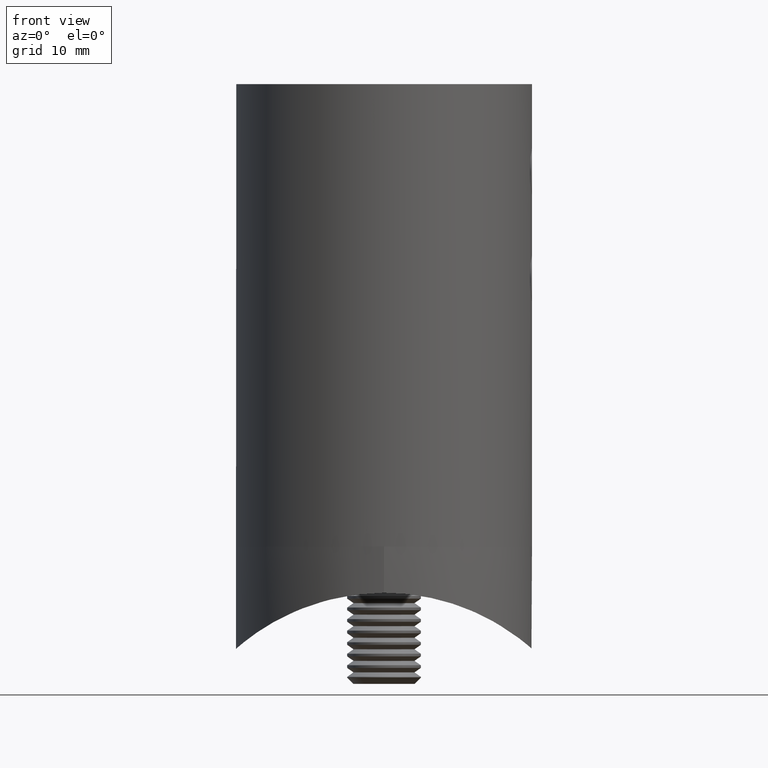
[diagram: clean part render]
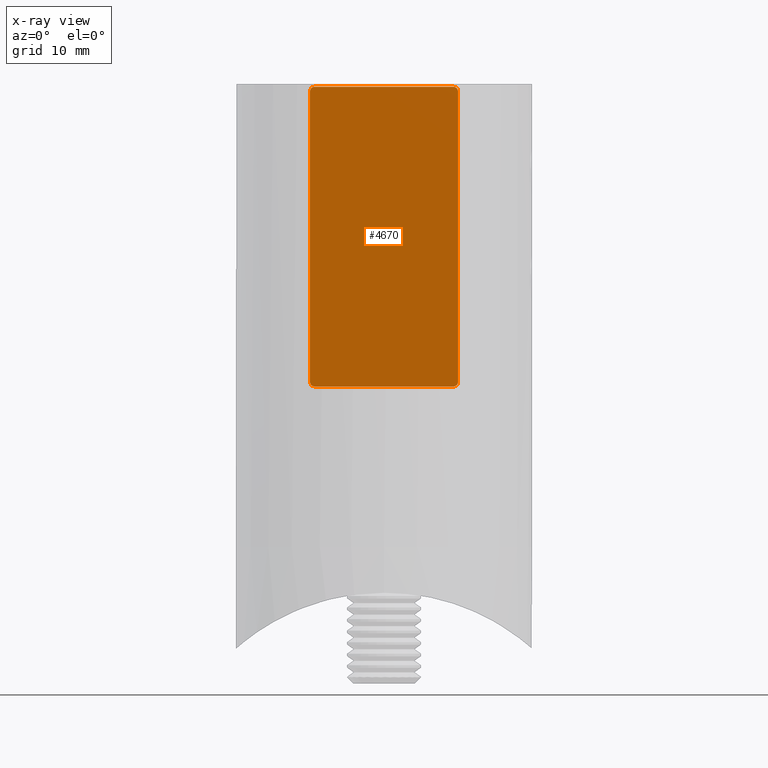
[diagram: x-ray — body ghosted, one internal face saturated and labeled with its STEP entity id]
A machine part, front view, then the same camera in x-ray: the body is ghosted and one INTERNAL B-rep face — a face not visible from any outside direction — is saturated and labeled: STEP entity #4670.
In plain terms, the highlighted planar face has unit normal (0, -1, -0).
Its self-contained STEP definition (entity closure, byte-faithful):
#408 = DIRECTION ( 'NONE',  ( 0.000000000000000000, 1.000000000000000000, 0.000000000000000000 ) ) ;
#740 = EDGE_CURVE ( 'NONE', #5903, #13530, #7506, .T. ) ;
#1109 = ORIENTED_EDGE ( 'NONE', *, *, #12085, .T. ) ;
#1373 = ORIENTED_EDGE ( 'NONE', *, *, #17275, .F. ) ;
#1666 = DIRECTION ( 'NONE',  ( 0.000000000000000000, -0.000000000000000000, -1.000000000000000000 ) ) ;
#2570 = VECTOR ( 'NONE', #8708, 1000.000000000000000 ) ;
#2706 = ORIENTED_EDGE ( 'NONE', *, *, #4376, .F. ) ;
#3267 = DIRECTION ( 'NONE',  ( 0.000000000000000000, 0.000000000000000000, 1.000000000000000000 ) ) ;
#4146 = EDGE_LOOP ( 'NONE', ( #9237, #8198, #6130, #5139, #12783, #2706, #1373, #1109 ) ) ;
#4376 = EDGE_CURVE ( 'NONE', #15030, #19792, #18681, .T. ) ;
#4670 = ADVANCED_FACE ( 'NONE', ( #9313 ), #18847, .T. ) ;
#4737 = DIRECTION ( 'NONE',  ( -0.000000000000000000, -1.000000000000000000, 0.000000000000000000 ) ) ;
#4837 = DIRECTION ( 'NONE',  ( 0.000000000000000000, 1.000000000000000000, 0.000000000000000000 ) ) ;
#5139 = ORIENTED_EDGE ( 'NONE', *, *, #5317, .F. ) ;
#5317 = EDGE_CURVE ( 'NONE', #12200, #12798, #19651, .T. ) ;
#5903 = VERTEX_POINT ( 'NONE', #13689 ) ;
#6130 = ORIENTED_EDGE ( 'NONE', *, *, #17508, .F. ) ;
#6135 = VECTOR ( 'NONE', #18451, 1000.000000000000000 ) ;
#6554 = DIRECTION ( 'NONE',  ( 0.000000000000000000, 0.000000000000000000, 1.000000000000000000 ) ) ;
#7022 = CARTESIAN_POINT ( 'NONE',  ( -16.19999999999999929, 0.000000000000000000, 7.499999999999996447 ) ) ;
#7453 = VECTOR ( 'NONE', #14625, 1000.000000000000000 ) ;
#7506 = CIRCLE ( 'NONE', #13621, 0.5000000000000004441 ) ;
#7647 = CARTESIAN_POINT ( 'NONE',  ( 16.19999999999999929, 0.000000000000000000, 7.499999999999996447 ) ) ;
#7692 = AXIS2_PLACEMENT_3D ( 'NONE', #10942, #9413, #1666 ) ;
#8152 = CARTESIAN_POINT ( 'NONE',  ( 15.69999999999999929, 0.000000000000000000, -7.500000000000000000 ) ) ;
#8198 = ORIENTED_EDGE ( 'NONE', *, *, #19058, .T. ) ;
#8235 = AXIS2_PLACEMENT_3D ( 'NONE', #8152, #408, #16171 ) ;
#8330 = CARTESIAN_POINT ( 'NONE',  ( 16.19999999999999929, 0.000000000000000000, -7.499999999999996447 ) ) ;
#8494 = CARTESIAN_POINT ( 'NONE',  ( 16.19999999999999929, 0.000000000000000000, 7.499999999999996447 ) ) ;
#8708 = DIRECTION ( 'NONE',  ( 1.000000000000000000, 0.000000000000000000, 0.000000000000000000 ) ) ;
#9237 = ORIENTED_EDGE ( 'NONE', *, *, #740, .T. ) ;
#9246 = CARTESIAN_POINT ( 'NONE',  ( 15.69999999999999574, 0.000000000000000000, 8.000000000000000000 ) ) ;
#9313 = FACE_OUTER_BOUND ( 'NONE', #4146, .T. ) ;
#9413 = DIRECTION ( 'NONE',  ( 0.000000000000000000, -1.000000000000000000, 0.000000000000000000 ) ) ;
#9895 = CARTESIAN_POINT ( 'NONE',  ( -16.19999999999999929, 0.000000000000000000, 7.499999999999996447 ) ) ;
#9972 = CIRCLE ( 'NONE', #10067, 0.5000000000000004441 ) ;
#10067 = AXIS2_PLACEMENT_3D ( 'NONE', #12670, #4837, #6554 ) ;
#10942 = CARTESIAN_POINT ( 'NONE',  ( -15.69999999999999929, 0.000000000000000000, -7.500000000000000000 ) ) ;
#11011 = CARTESIAN_POINT ( 'NONE',  ( 15.69999999999999574, 0.000000000000000000, -8.000000000000000000 ) ) ;
#11041 = CARTESIAN_POINT ( 'NONE',  ( -15.69999999999999929, 0.000000000000000000, -7.500000000000000000 ) ) ;
#11550 = VECTOR ( 'NONE', #18510, 1000.000000000000000 ) ;
#11856 = CARTESIAN_POINT ( 'NONE',  ( -15.69999999999999574, 0.000000000000000000, 8.000000000000000000 ) ) ;
#12085 = EDGE_CURVE ( 'NONE', #14903, #5903, #12135, .T. ) ;
#12135 = LINE ( 'NONE', #9895, #7453 ) ;
#12200 = VERTEX_POINT ( 'NONE', #7647 ) ;
#12432 = DIRECTION ( 'NONE',  ( 0.000000000000000000, 1.000000000000000000, 0.000000000000000000 ) ) ;
#12602 = EDGE_CURVE ( 'NONE', #19792, #12200, #19507, .T. ) ;
#12670 = CARTESIAN_POINT ( 'NONE',  ( -15.69999999999999929, 0.000000000000000000, 7.500000000000000000 ) ) ;
#12783 = ORIENTED_EDGE ( 'NONE', *, *, #12602, .F. ) ;
#12798 = VERTEX_POINT ( 'NONE', #8330 ) ;
#12915 = LINE ( 'NONE', #15075, #2570 ) ;
#13443 = CARTESIAN_POINT ( 'NONE',  ( -15.69999999999999574, 0.000000000000000000, -8.000000000000000000 ) ) ;
#13530 = VERTEX_POINT ( 'NONE', #13443 ) ;
#13621 = AXIS2_PLACEMENT_3D ( 'NONE', #11041, #4737, #15752 ) ;
#13689 = CARTESIAN_POINT ( 'NONE',  ( -16.19999999999999929, 0.000000000000000000, -7.499999999999996447 ) ) ;
#14625 = DIRECTION ( 'NONE',  ( 0.000000000000000000, 0.000000000000000000, -1.000000000000000000 ) ) ;
#14697 = CIRCLE ( 'NONE', #8235, 0.5000000000000004441 ) ;
#14903 = VERTEX_POINT ( 'NONE', #7022 ) ;
#15030 = VERTEX_POINT ( 'NONE', #15981 ) ;
#15075 = CARTESIAN_POINT ( 'NONE',  ( -15.69999999999999574, 0.000000000000000000, -8.000000000000000000 ) ) ;
#15270 = AXIS2_PLACEMENT_3D ( 'NONE', #15747, #12432, #3267 ) ;
#15747 = CARTESIAN_POINT ( 'NONE',  ( 15.69999999999999929, 0.000000000000000000, 7.500000000000000000 ) ) ;
#15752 = DIRECTION ( 'NONE',  ( 0.000000000000000000, 0.000000000000000000, -1.000000000000000000 ) ) ;
#15981 = CARTESIAN_POINT ( 'NONE',  ( -15.69999999999999574, 0.000000000000000000, 8.000000000000000000 ) ) ;
#16171 = DIRECTION ( 'NONE',  ( 0.000000000000000000, 0.000000000000000000, 1.000000000000000000 ) ) ;
#17178 = VERTEX_POINT ( 'NONE', #11011 ) ;
#17275 = EDGE_CURVE ( 'NONE', #14903, #15030, #9972, .T. ) ;
#17508 = EDGE_CURVE ( 'NONE', #12798, #17178, #14697, .T. ) ;
#18451 = DIRECTION ( 'NONE',  ( 0.000000000000000000, 0.000000000000000000, -1.000000000000000000 ) ) ;
#18510 = DIRECTION ( 'NONE',  ( 1.000000000000000000, 0.000000000000000000, 0.000000000000000000 ) ) ;
#18681 = LINE ( 'NONE', #11856, #11550 ) ;
#18847 = PLANE ( 'NONE',  #7692 ) ;
#19058 = EDGE_CURVE ( 'NONE', #13530, #17178, #12915, .T. ) ;
#19507 = CIRCLE ( 'NONE', #15270, 0.5000000000000004441 ) ;
#19651 = LINE ( 'NONE', #8494, #6135 ) ;
#19792 = VERTEX_POINT ( 'NONE', #9246 ) ;